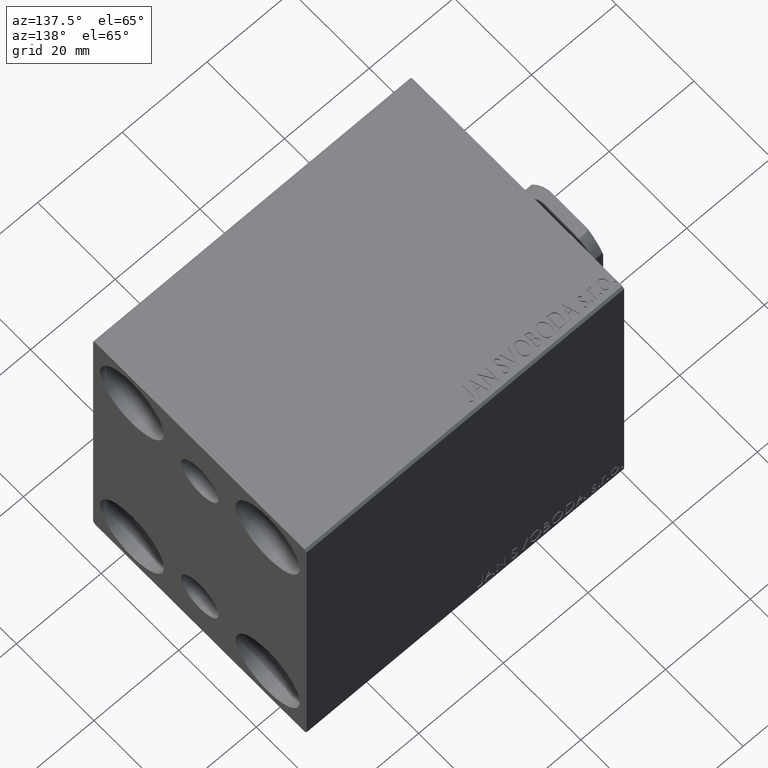
[diagram: clean part render]
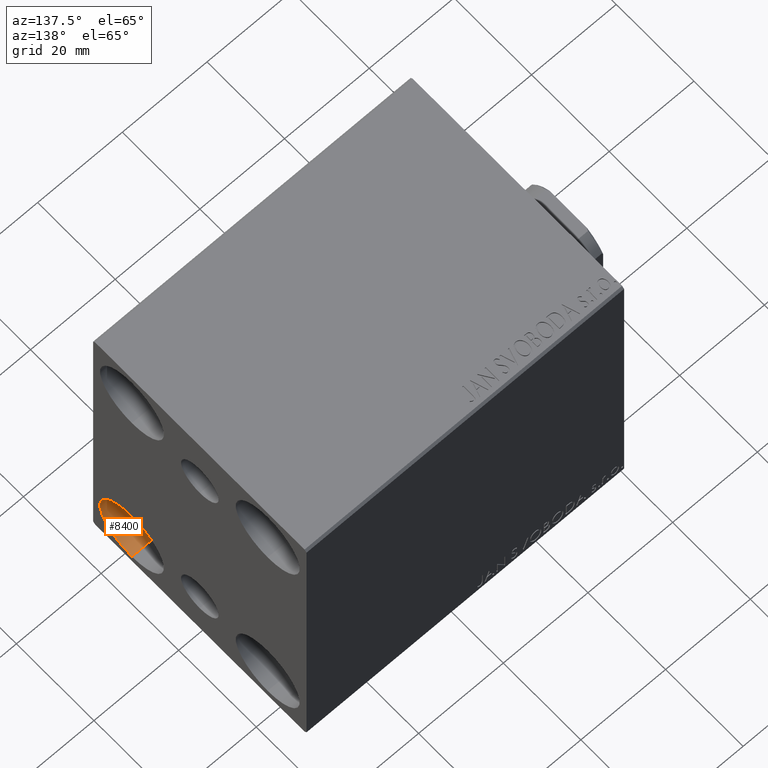
[diagram: same view with one face highlighted and labeled with its STEP entity id]
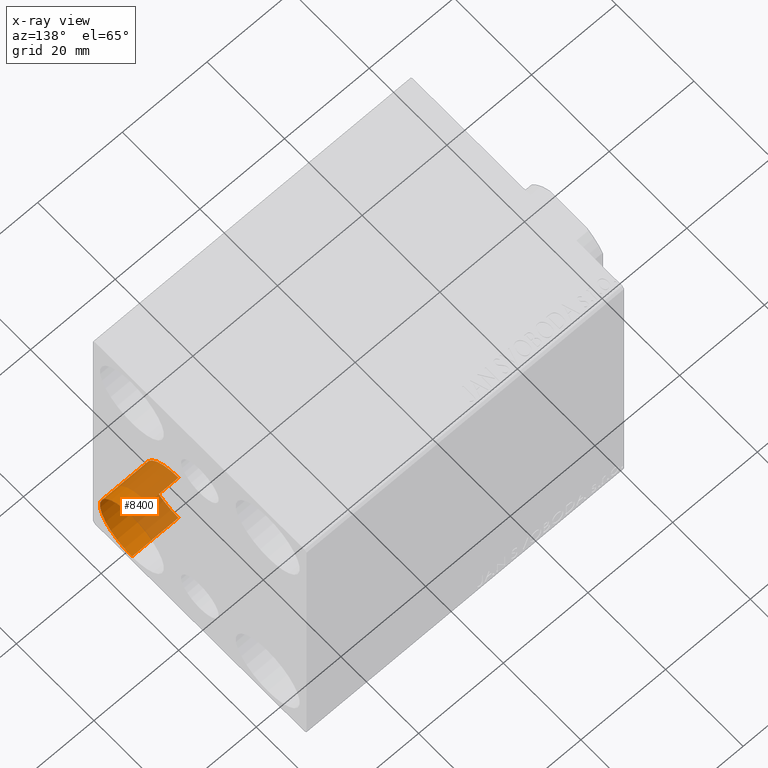
[diagram: x-ray of the same camera — body ghosted, the highlighted face saturated]
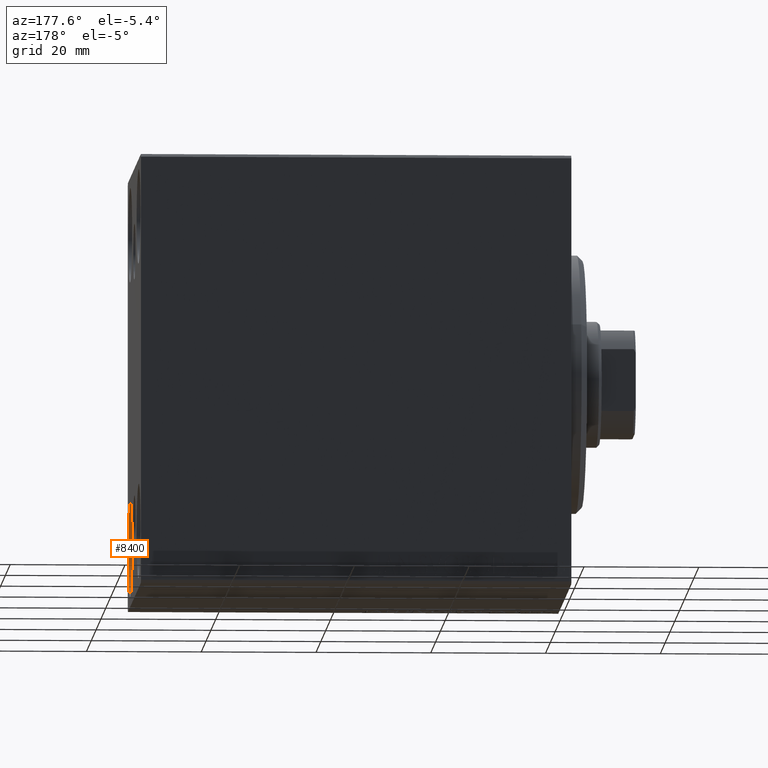
[diagram: same view with one face highlighted and labeled with its STEP entity id]
A machine part, auxiliary view. The second image highlights one B-rep face of the part: STEP entity #8400.
The next image is the same camera in x-ray: the body ghosted, the highlighted face saturated — about 53% of this face is hidden behind the body in this view.
A second angle (auxiliary view) of the same face is appended — the face is thin or edge-on in the first view.
In plain terms, the highlighted cylindrical surface (partial cylindrical patch) has radius 8.25 mm, axis along (1, 0, 0).
Its self-contained STEP definition (entity closure, byte-faithful):
#1066 = EDGE_CURVE ( 'NONE', #16153, #6346, #34367, .T. ) ;
#1528 = DIRECTION ( 'NONE',  ( -1.000000000000000000, -0.000000000000000000, -0.000000000000000000 ) ) ;
#2205 = CIRCLE ( 'NONE', #32485, 8.250000000000000000 ) ;
#2418 = EDGE_CURVE ( 'NONE', #6346, #10122, #42030, .T. ) ;
#6252 = CARTESIAN_POINT ( 'NONE',  ( 64.00000000000000000, -17.50000000000000355, -27.50000000000000355 ) ) ;
#6346 = VERTEX_POINT ( 'NONE', #9026 ) ;
#8400 = ADVANCED_FACE ( 'NONE', ( #29826 ), #9771, .F. ) ;
#9026 = CARTESIAN_POINT ( 'NONE',  ( 75.00000000000000000, -17.50000000000000355, -35.75000000000000711 ) ) ;
#9190 = DIRECTION ( 'NONE',  ( -1.000000000000000000, -0.000000000000000000, -0.000000000000000000 ) ) ;
#9771 = CYLINDRICAL_SURFACE ( 'NONE', #21758, 8.250000000000000000 ) ;
#10122 = VERTEX_POINT ( 'NONE', #20897 ) ;
#10999 = CARTESIAN_POINT ( 'NONE',  ( 64.00000000000000000, -17.50000000000000355, -19.25000000000000355 ) ) ;
#12429 = VECTOR ( 'NONE', #31928, 1000.000000000000000 ) ;
#13394 = ORIENTED_EDGE ( 'NONE', *, *, #16813, .T. ) ;
#14531 = DIRECTION ( 'NONE',  ( 1.000000000000000000, -0.000000000000000000, -0.000000000000000000 ) ) ;
#14878 = EDGE_LOOP ( 'NONE', ( #13394, #30614, #23099, #17224 ) ) ;
#14991 = DIRECTION ( 'NONE',  ( 0.000000000000000000, 0.000000000000000000, 1.000000000000000000 ) ) ;
#16153 = VERTEX_POINT ( 'NONE', #34468 ) ;
#16813 = EDGE_CURVE ( 'NONE', #16153, #41577, #2205, .T. ) ;
#17224 = ORIENTED_EDGE ( 'NONE', *, *, #1066, .F. ) ;
#18292 = CARTESIAN_POINT ( 'NONE',  ( 64.00000000000000000, -17.50000000000000355, -27.50000000000000355 ) ) ;
#20897 = CARTESIAN_POINT ( 'NONE',  ( 75.00000000000000000, -17.50000000000000355, -19.25000000000000355 ) ) ;
#21758 = AXIS2_PLACEMENT_3D ( 'NONE', #6252, #39525, #33561 ) ;
#23099 = ORIENTED_EDGE ( 'NONE', *, *, #2418, .F. ) ;
#26152 = DIRECTION ( 'NONE',  ( 0.000000000000000000, 0.000000000000000000, 1.000000000000000000 ) ) ;
#26364 = CARTESIAN_POINT ( 'NONE',  ( 75.00000000000000000, -17.50000000000000355, -27.50000000000000355 ) ) ;
#27328 = CARTESIAN_POINT ( 'NONE',  ( 64.00000000000000000, -17.50000000000000355, -35.75000000000000711 ) ) ;
#29826 = FACE_OUTER_BOUND ( 'NONE', #14878, .T. ) ;
#30614 = ORIENTED_EDGE ( 'NONE', *, *, #41631, .T. ) ;
#30739 = VECTOR ( 'NONE', #14531, 1000.000000000000000 ) ;
#31928 = DIRECTION ( 'NONE',  ( 1.000000000000000000, -0.000000000000000000, -0.000000000000000000 ) ) ;
#32485 = AXIS2_PLACEMENT_3D ( 'NONE', #18292, #1528, #14991 ) ;
#33561 = DIRECTION ( 'NONE',  ( 0.000000000000000000, 0.000000000000000000, -1.000000000000000000 ) ) ;
#34136 = CARTESIAN_POINT ( 'NONE',  ( 64.00000000000000000, -17.50000000000000355, -19.25000000000000355 ) ) ;
#34367 = LINE ( 'NONE', #27328, #30739 ) ;
#34468 = CARTESIAN_POINT ( 'NONE',  ( 64.00000000000000000, -17.50000000000000355, -35.75000000000000711 ) ) ;
#39525 = DIRECTION ( 'NONE',  ( 1.000000000000000000, -0.000000000000000000, -0.000000000000000000 ) ) ;
#41183 = LINE ( 'NONE', #10999, #12429 ) ;
#41577 = VERTEX_POINT ( 'NONE', #34136 ) ;
#41631 = EDGE_CURVE ( 'NONE', #41577, #10122, #41183, .T. ) ;
#42030 = CIRCLE ( 'NONE', #42714, 8.250000000000000000 ) ;
#42714 = AXIS2_PLACEMENT_3D ( 'NONE', #26364, #9190, #26152 ) ;